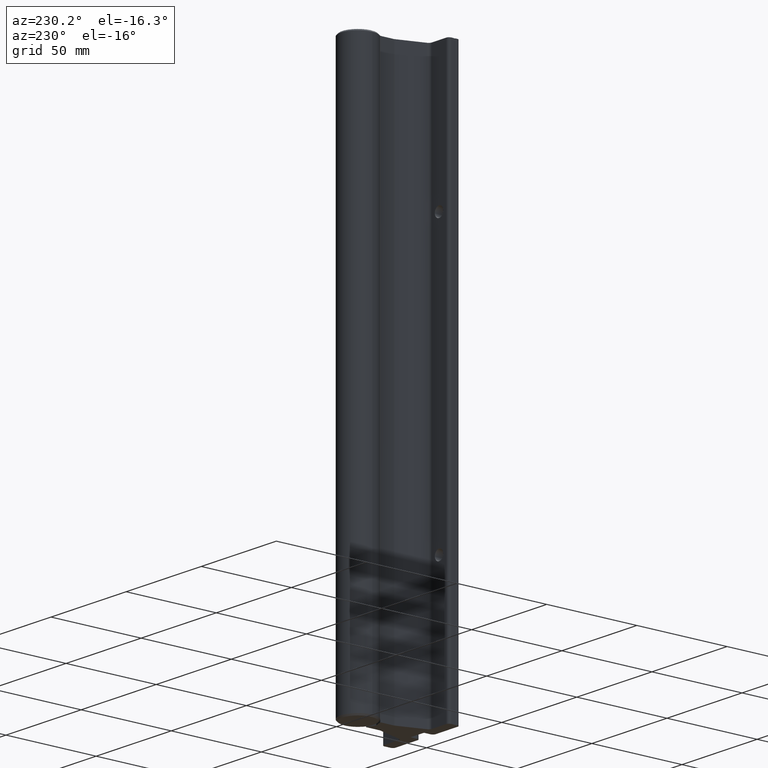
[diagram: clean part render]
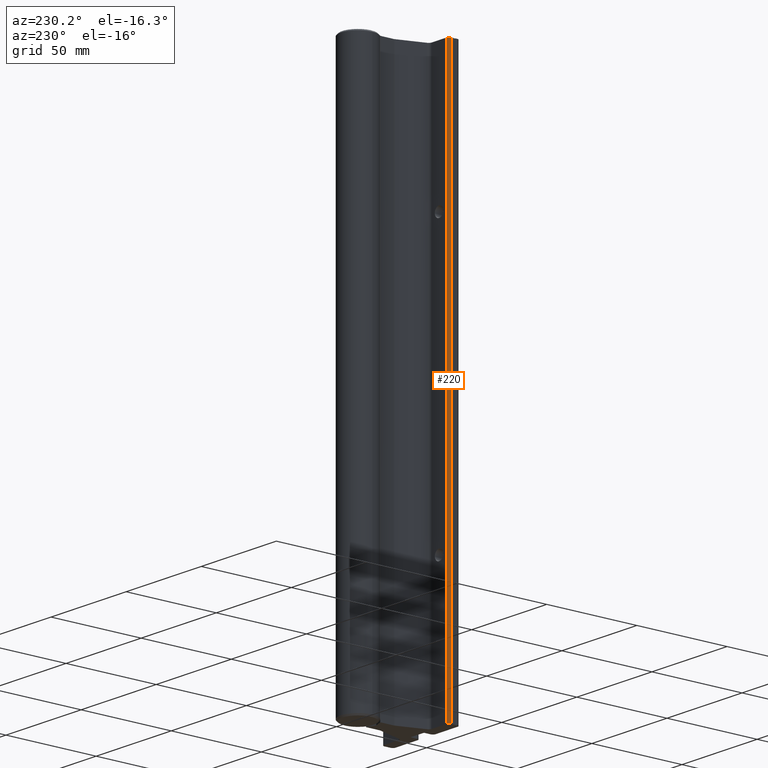
[diagram: same view with one face highlighted and labeled with its STEP entity id]
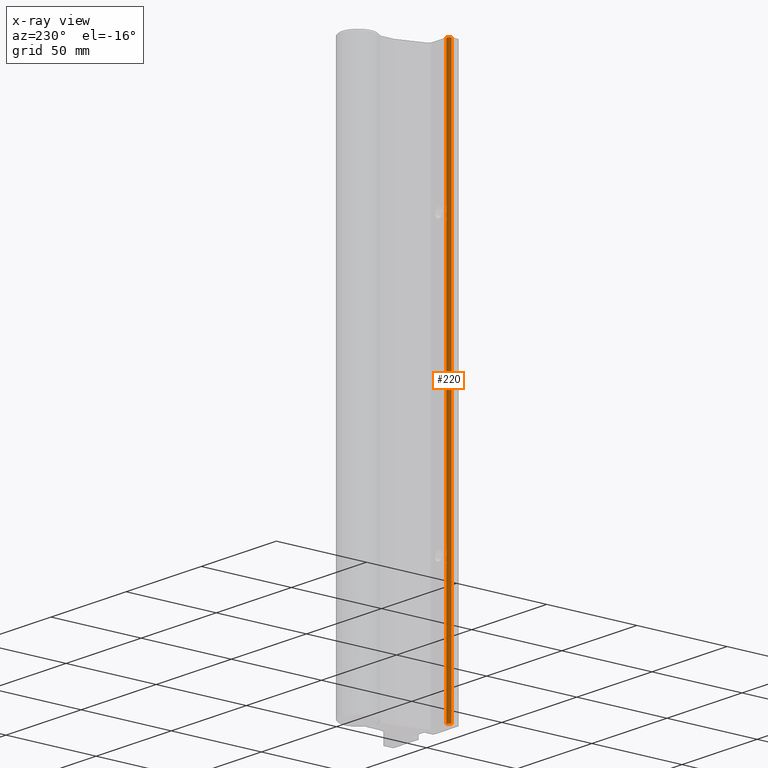
[diagram: x-ray of the same camera — body ghosted, the highlighted face saturated]
A machine part, auxiliary view. The second image highlights one B-rep face of the part: STEP entity #220.
The next image is the same camera in x-ray: the body ghosted, the highlighted face saturated — about 0% of this face is hidden behind the body in this view.
In plain terms, the highlighted cylindrical surface (edge-blend (fillet) strip) has radius 1.524 mm, axis along (0, 0, 1).
Its self-contained STEP definition (entity closure, byte-faithful):
#113 = CARTESIAN_POINT ( 'NONE',  ( -0.8750000000000001110, 0.1900000000000000300, -14.10463218188033174 ) ) ;
#183 = DIRECTION ( 'NONE',  ( 1.000000000000000000, 0.0000000000000000000, 0.0000000000000000000 ) ) ;
#220 = ADVANCED_FACE ( 'NONE', ( #1962 ), #3300, .T. ) ;
#254 = AXIS2_PLACEMENT_3D ( 'NONE', #3895, #3533, #3576 ) ;
#312 = CARTESIAN_POINT ( 'NONE',  ( -0.8150000000000001688, 0.2499999999999999167, -12.00000000000000178 ) ) ;
#391 = CARTESIAN_POINT ( 'NONE',  ( -0.8750000000000001110, 0.1900000000000000300, 0.0000000000000000000 ) ) ;
#556 = VERTEX_POINT ( 'NONE', #1098 ) ;
#660 = AXIS2_PLACEMENT_3D ( 'NONE', #3869, #2593, #3857 ) ;
#675 = EDGE_CURVE ( 'NONE', #2341, #3601, #1179, .T. ) ;
#738 = EDGE_LOOP ( 'NONE', ( #1360, #1403, #1594, #2411 ) ) ;
#745 = DIRECTION ( 'NONE',  ( 0.0000000000000000000, 0.0000000000000000000, 1.000000000000000000 ) ) ;
#1098 = CARTESIAN_POINT ( 'NONE',  ( -0.8150000000000001688, 0.2499999999999999167, 0.0000000000000000000 ) ) ;
#1179 = CIRCLE ( 'NONE', #2486, 0.05999999999999990757 ) ;
#1188 = EDGE_CURVE ( 'NONE', #556, #1589, #3727, .T. ) ;
#1360 = ORIENTED_EDGE ( 'NONE', *, *, #675, .F. ) ;
#1403 = ORIENTED_EDGE ( 'NONE', *, *, #1911, .T. ) ;
#1467 = VECTOR ( 'NONE', #745, 39.37007874015748143 ) ;
#1491 = CARTESIAN_POINT ( 'NONE',  ( -0.8150000000000001688, 0.2499999999999999167, -14.10463218188033174 ) ) ;
#1589 = VERTEX_POINT ( 'NONE', #391 ) ;
#1594 = ORIENTED_EDGE ( 'NONE', *, *, #1188, .F. ) ;
#1712 = LINE ( 'NONE', #1491, #3241 ) ;
#1779 = DIRECTION ( 'NONE',  ( 0.0000000000000000000, 0.0000000000000000000, 1.000000000000000000 ) ) ;
#1911 = EDGE_CURVE ( 'NONE', #2341, #1589, #2857, .T. ) ;
#1962 = FACE_OUTER_BOUND ( 'NONE', #738, .T. ) ;
#2341 = VERTEX_POINT ( 'NONE', #3750 ) ;
#2411 = ORIENTED_EDGE ( 'NONE', *, *, #3423, .F. ) ;
#2486 = AXIS2_PLACEMENT_3D ( 'NONE', #2973, #3649, #183 ) ;
#2593 = DIRECTION ( 'NONE',  ( 0.0000000000000000000, 0.0000000000000000000, 1.000000000000000000 ) ) ;
#2857 = LINE ( 'NONE', #113, #1467 ) ;
#2973 = CARTESIAN_POINT ( 'NONE',  ( -0.8150000000000001688, 0.1900000000000000300, -12.00000000000000178 ) ) ;
#3241 = VECTOR ( 'NONE', #1779, 39.37007874015748143 ) ;
#3300 = CYLINDRICAL_SURFACE ( 'NONE', #254, 0.05999999999999990757 ) ;
#3423 = EDGE_CURVE ( 'NONE', #3601, #556, #1712, .T. ) ;
#3533 = DIRECTION ( 'NONE',  ( 0.0000000000000000000, 0.0000000000000000000, 1.000000000000000000 ) ) ;
#3576 = DIRECTION ( 'NONE',  ( 1.000000000000000000, 0.0000000000000000000, 0.0000000000000000000 ) ) ;
#3601 = VERTEX_POINT ( 'NONE', #312 ) ;
#3649 = DIRECTION ( 'NONE',  ( -0.0000000000000000000, -0.0000000000000000000, -1.000000000000000000 ) ) ;
#3727 = CIRCLE ( 'NONE', #660, 0.05999999999999990757 ) ;
#3750 = CARTESIAN_POINT ( 'NONE',  ( -0.8750000000000001110, 0.1900000000000000300, -12.00000000000000178 ) ) ;
#3857 = DIRECTION ( 'NONE',  ( 1.000000000000000000, 0.0000000000000000000, 0.0000000000000000000 ) ) ;
#3869 = CARTESIAN_POINT ( 'NONE',  ( -0.8150000000000001688, 0.1900000000000000300, 0.0000000000000000000 ) ) ;
#3895 = CARTESIAN_POINT ( 'NONE',  ( -0.8150000000000001688, 0.1900000000000000300, -14.10463218188033174 ) ) ;